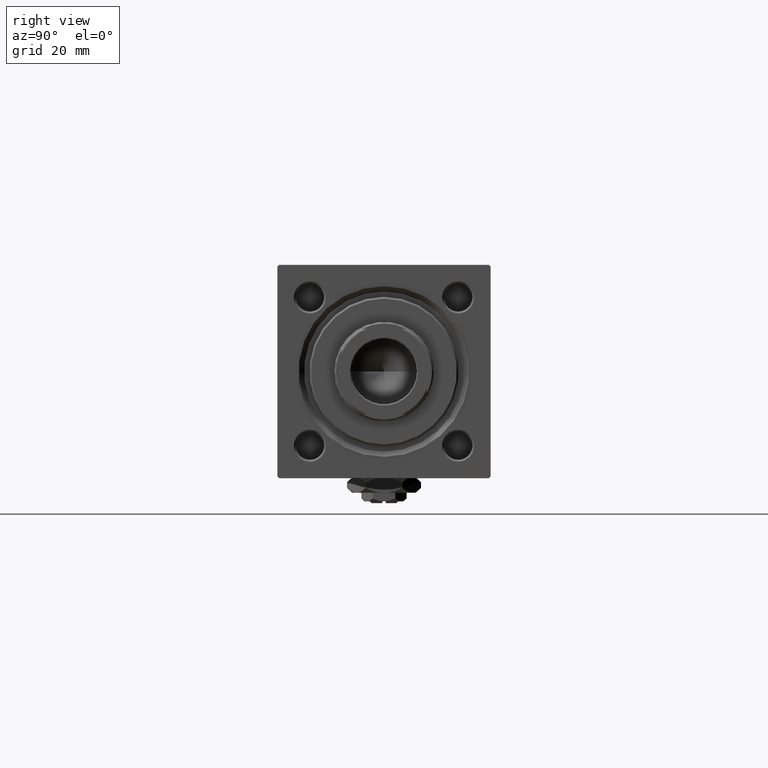
[diagram: clean part render]
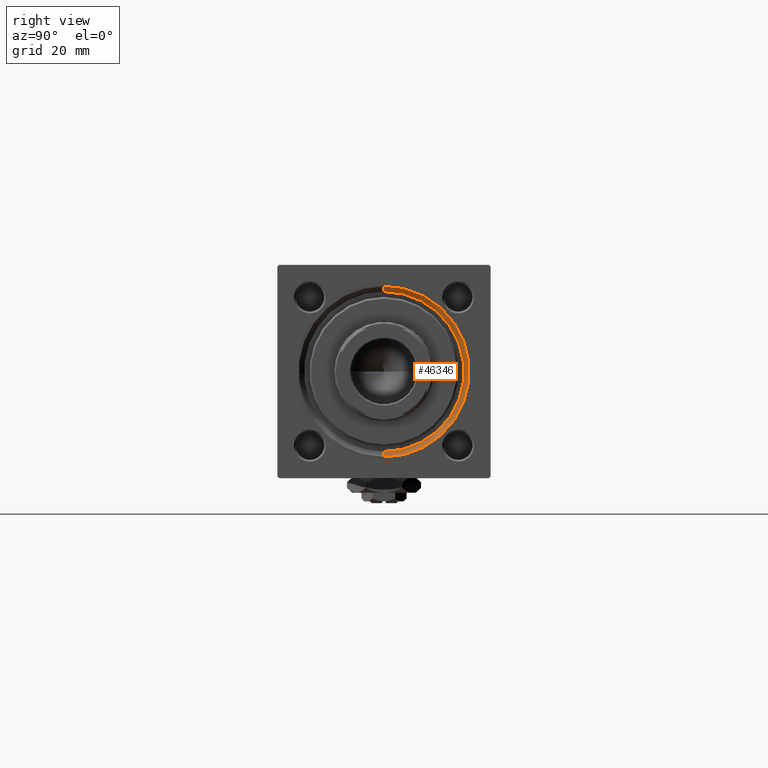
[diagram: same view with one face highlighted and labeled with its STEP entity id]
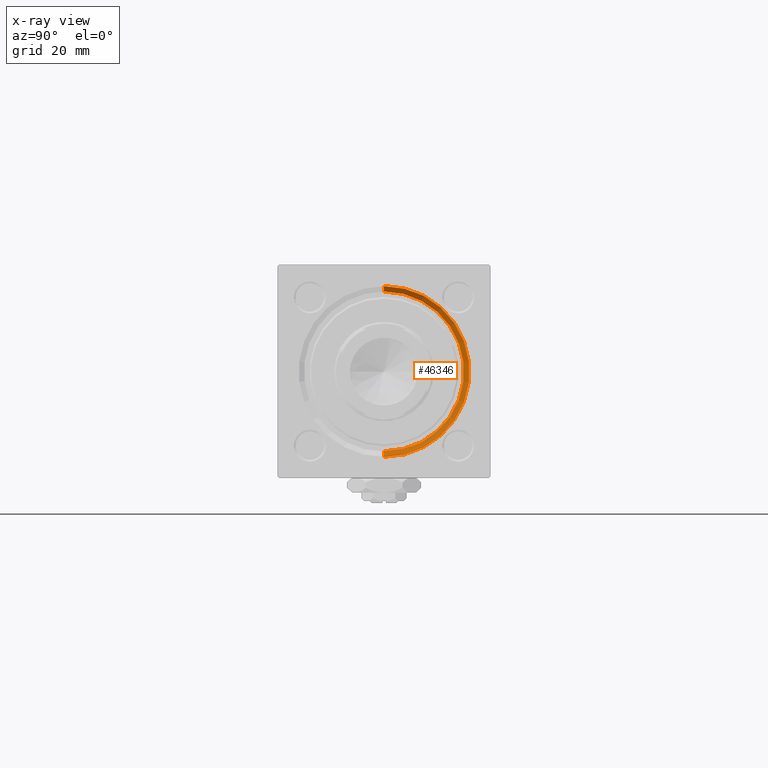
[diagram: x-ray of the same camera — body ghosted, the highlighted face saturated]
A machine part, right view. The second image highlights one B-rep face of the part: STEP entity #46346.
The next image is the same camera in x-ray: the body ghosted, the highlighted face saturated — about 0% of this face is hidden behind the body in this view.
In plain terms, the highlighted conical surface has half-angle 45 deg.
Its self-contained STEP definition (entity closure, byte-faithful):
#1353 = CARTESIAN_POINT ( 'NONE',  ( 148.0000000000000000, 0.000000000000000000, 0.000000000000000000 ) ) ;
#3462 = FACE_OUTER_BOUND ( 'NONE', #38492, .T. ) ;
#4653 = EDGE_CURVE ( 'NONE', #28988, #37204, #15401, .T. ) ;
#8630 = CARTESIAN_POINT ( 'NONE',  ( 148.0000000000000000, 2.939152317953652628E-15, 24.00000000000003908 ) ) ;
#9091 = ORIENTED_EDGE ( 'NONE', *, *, #19207, .F. ) ;
#9266 = VERTEX_POINT ( 'NONE', #45939 ) ;
#9604 = ORIENTED_EDGE ( 'NONE', *, *, #31982, .T. ) ;
#10061 = DIRECTION ( 'NONE',  ( 1.000000000000000000, 0.000000000000000000, 0.000000000000000000 ) ) ;
#13034 = ORIENTED_EDGE ( 'NONE', *, *, #42905, .F. ) ;
#13184 = DIRECTION ( 'NONE',  ( -1.000000000000000000, 0.000000000000000000, -0.000000000000000000 ) ) ;
#14038 = DIRECTION ( 'NONE',  ( 0.7071067811865524577, 0.000000000000000000, -0.7071067811865426878 ) ) ;
#14807 = VECTOR ( 'NONE', #18186, 1000.000000000000000 ) ;
#15401 = CIRCLE ( 'NONE', #34645, 24.00000000000003908 ) ;
#17646 = DIRECTION ( 'NONE',  ( 0.000000000000000000, 0.000000000000000000, 1.000000000000000000 ) ) ;
#17685 = DIRECTION ( 'NONE',  ( 0.000000000000000000, 0.000000000000000000, 1.000000000000000000 ) ) ;
#18186 = DIRECTION ( 'NONE',  ( 0.7071067811865524577, 8.659560562354874926E-17, 0.7071067811865426878 ) ) ;
#18266 = CIRCLE ( 'NONE', #48452, 22.50000000000000355 ) ;
#18303 = AXIS2_PLACEMENT_3D ( 'NONE', #51281, #19506, #39721 ) ;
#19207 = EDGE_CURVE ( 'NONE', #41899, #9266, #18266, .T. ) ;
#19506 = DIRECTION ( 'NONE',  ( 1.000000000000000000, 0.000000000000000000, 0.000000000000000000 ) ) ;
#20818 = CONICAL_SURFACE ( 'NONE', #18303, 22.50000000000000355, 0.7853981633974415066 ) ;
#26338 = CARTESIAN_POINT ( 'NONE',  ( 146.4999999999999432, 0.000000000000000000, 0.000000000000000000 ) ) ;
#28988 = VERTEX_POINT ( 'NONE', #8630 ) ;
#31982 = EDGE_CURVE ( 'NONE', #41899, #37204, #33980, .T. ) ;
#33980 = LINE ( 'NONE', #50013, #40540 ) ;
#34488 = ORIENTED_EDGE ( 'NONE', *, *, #4653, .F. ) ;
#34645 = AXIS2_PLACEMENT_3D ( 'NONE', #1353, #13184, #17646 ) ;
#37204 = VERTEX_POINT ( 'NONE', #47338 ) ;
#37880 = CARTESIAN_POINT ( 'NONE',  ( 146.4999999999999432, 2.755455298081545172E-15, 22.50000000000000355 ) ) ;
#38492 = EDGE_LOOP ( 'NONE', ( #13034, #9091, #9604, #34488 ) ) ;
#39721 = DIRECTION ( 'NONE',  ( 0.000000000000000000, 0.000000000000000000, -1.000000000000000000 ) ) ;
#40540 = VECTOR ( 'NONE', #14038, 1000.000000000000000 ) ;
#41899 = VERTEX_POINT ( 'NONE', #48092 ) ;
#42905 = EDGE_CURVE ( 'NONE', #9266, #28988, #51010, .T. ) ;
#45939 = CARTESIAN_POINT ( 'NONE',  ( 146.4999999999999432, 2.755455298081545172E-15, 22.50000000000000355 ) ) ;
#46346 = ADVANCED_FACE ( 'NONE', ( #3462 ), #20818, .F. ) ;
#47338 = CARTESIAN_POINT ( 'NONE',  ( 148.0000000000000000, 0.000000000000000000, -24.00000000000003908 ) ) ;
#48092 = CARTESIAN_POINT ( 'NONE',  ( 146.4999999999999432, 0.000000000000000000, -22.50000000000000355 ) ) ;
#48452 = AXIS2_PLACEMENT_3D ( 'NONE', #26338, #10061, #17685 ) ;
#50013 = CARTESIAN_POINT ( 'NONE',  ( 146.4999999999999432, 0.000000000000000000, -22.50000000000000355 ) ) ;
#51010 = LINE ( 'NONE', #37880, #14807 ) ;
#51281 = CARTESIAN_POINT ( 'NONE',  ( 146.4999999999999432, 0.000000000000000000, 0.000000000000000000 ) ) ;